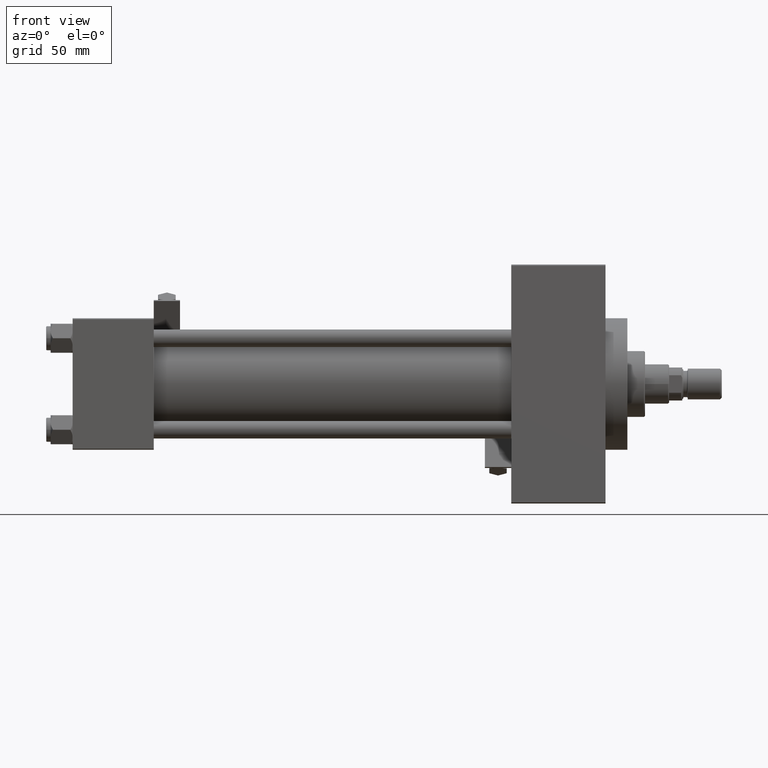
[diagram: clean part render]
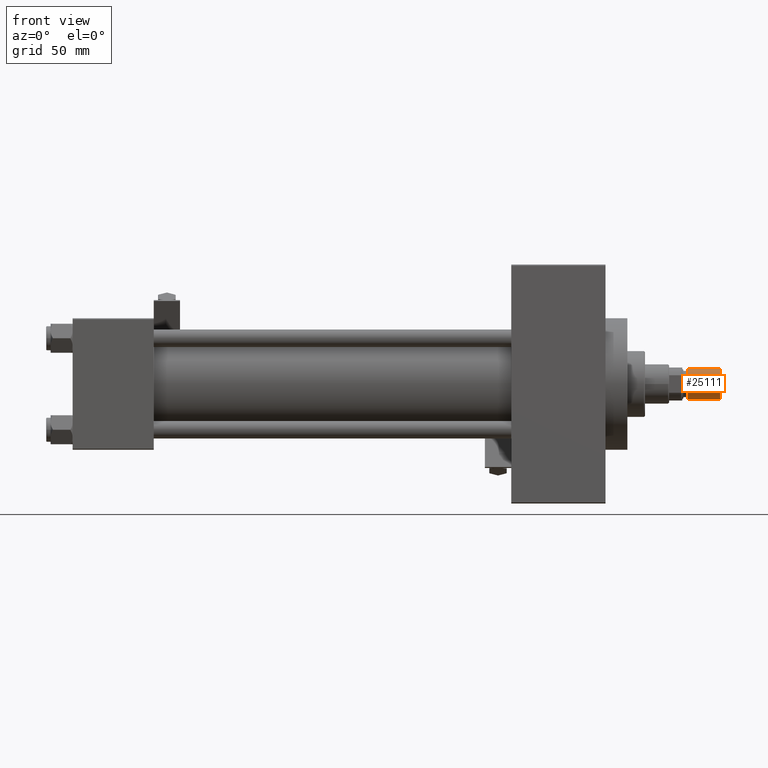
[diagram: same view with one face highlighted and labeled with its STEP entity id]
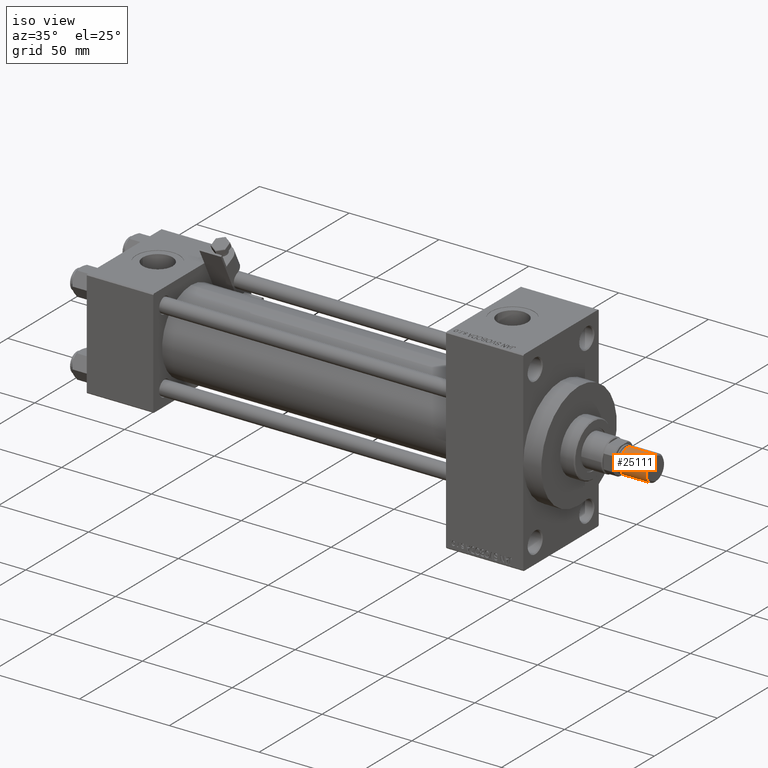
[diagram: same view with one face highlighted and labeled with its STEP entity id]
A machine part, front view. The second image highlights one B-rep face of the part: STEP entity #25111.
A second angle (iso view) of the same face is appended — the face is thin or edge-on in the first view.
In plain terms, the highlighted cylindrical surface (edge-blend (fillet) strip) has radius 7 mm, axis along (1, -0, -0).
Its self-contained STEP definition (entity closure, byte-faithful):
#787 = AXIS2_PLACEMENT_3D ( 'NONE', #28285, #17214, #44211 ) ;
#994 = CIRCLE ( 'NONE', #1836, 7.000000000000000000 ) ;
#1543 = LINE ( 'NONE', #33404, #4082 ) ;
#1747 = CARTESIAN_POINT ( 'NONE',  ( 0.000000000000000000, 0.000000000000000000, 0.8000000000000020428 ) ) ;
#1836 = AXIS2_PLACEMENT_3D ( 'NONE', #1747, #6122, #5861 ) ;
#3600 = EDGE_CURVE ( 'NONE', #23575, #13031, #47061, .T. ) ;
#4082 = VECTOR ( 'NONE', #5407, 1000.000000000000000 ) ;
#4766 = CYLINDRICAL_SURFACE ( 'NONE', #46348, 7.000000000000000000 ) ;
#5407 = DIRECTION ( 'NONE',  ( -0.000000000000000000, -0.000000000000000000, -1.000000000000000000 ) ) ;
#5861 = DIRECTION ( 'NONE',  ( 1.000000000000000000, 0.000000000000000000, 0.000000000000000000 ) ) ;
#6122 = DIRECTION ( 'NONE',  ( -0.000000000000000000, -0.000000000000000000, 1.000000000000000000 ) ) ;
#7852 = EDGE_LOOP ( 'NONE', ( #9541, #36583, #8339, #48213 ) ) ;
#8339 = ORIENTED_EDGE ( 'NONE', *, *, #44032, .T. ) ;
#9027 = EDGE_CURVE ( 'NONE', #41657, #13031, #994, .T. ) ;
#9541 = ORIENTED_EDGE ( 'NONE', *, *, #3600, .F. ) ;
#13031 = VERTEX_POINT ( 'NONE', #46463 ) ;
#14007 = VERTEX_POINT ( 'NONE', #31467 ) ;
#15587 = CARTESIAN_POINT ( 'NONE',  ( 0.000000000000000000, 0.000000000000000000, 15.50000000000000000 ) ) ;
#16097 = DIRECTION ( 'NONE',  ( -0.000000000000000000, -0.000000000000000000, -1.000000000000000000 ) ) ;
#17214 = DIRECTION ( 'NONE',  ( 0.000000000000000000, 0.000000000000000000, 1.000000000000000000 ) ) ;
#22839 = CARTESIAN_POINT ( 'NONE',  ( -7.000000000000000000, 0.000000000000000000, 0.8000000000000020428 ) ) ;
#22926 = CIRCLE ( 'NONE', #787, 7.000000000000000000 ) ;
#23170 = DIRECTION ( 'NONE',  ( -0.000000000000000000, -0.000000000000000000, -1.000000000000000000 ) ) ;
#23575 = VERTEX_POINT ( 'NONE', #42942 ) ;
#25111 = ADVANCED_FACE ( 'NONE', ( #47436 ), #4766, .T. ) ;
#28285 = CARTESIAN_POINT ( 'NONE',  ( 0.000000000000000000, 0.000000000000000000, 15.50000000000000000 ) ) ;
#31467 = CARTESIAN_POINT ( 'NONE',  ( -7.000000000000000000, 0.000000000000000000, 15.50000000000000000 ) ) ;
#33404 = CARTESIAN_POINT ( 'NONE',  ( -7.000000000000000000, 0.000000000000000000, 15.50000000000000000 ) ) ;
#35375 = DIRECTION ( 'NONE',  ( -1.000000000000000000, 0.000000000000000000, 0.000000000000000000 ) ) ;
#36583 = ORIENTED_EDGE ( 'NONE', *, *, #43112, .F. ) ;
#37088 = VECTOR ( 'NONE', #23170, 1000.000000000000000 ) ;
#38859 = CARTESIAN_POINT ( 'NONE',  ( 7.000000000000000000, 8.572527594031473190E-16, 15.50000000000000000 ) ) ;
#41657 = VERTEX_POINT ( 'NONE', #22839 ) ;
#42942 = CARTESIAN_POINT ( 'NONE',  ( 7.000000000000000000, 8.572527594031473190E-16, 15.50000000000000000 ) ) ;
#43112 = EDGE_CURVE ( 'NONE', #14007, #23575, #22926, .T. ) ;
#44032 = EDGE_CURVE ( 'NONE', #14007, #41657, #1543, .T. ) ;
#44211 = DIRECTION ( 'NONE',  ( 1.000000000000000000, 0.000000000000000000, 0.000000000000000000 ) ) ;
#46348 = AXIS2_PLACEMENT_3D ( 'NONE', #15587, #16097, #35375 ) ;
#46463 = CARTESIAN_POINT ( 'NONE',  ( 7.000000000000000000, 8.572527594031473190E-16, 0.8000000000000020428 ) ) ;
#47061 = LINE ( 'NONE', #38859, #37088 ) ;
#47436 = FACE_OUTER_BOUND ( 'NONE', #7852, .T. ) ;
#48213 = ORIENTED_EDGE ( 'NONE', *, *, #9027, .T. ) ;